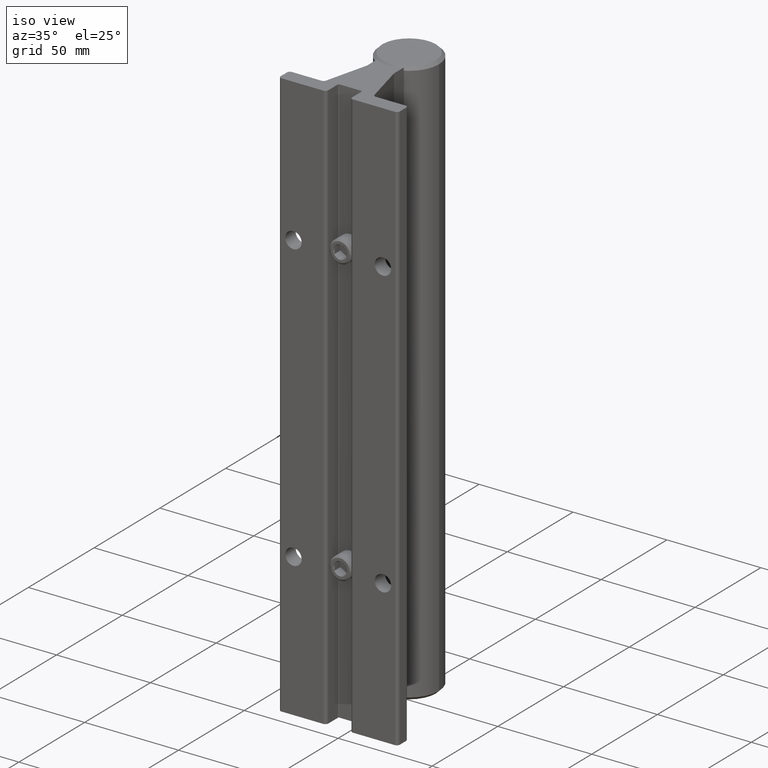
[diagram: clean part render]
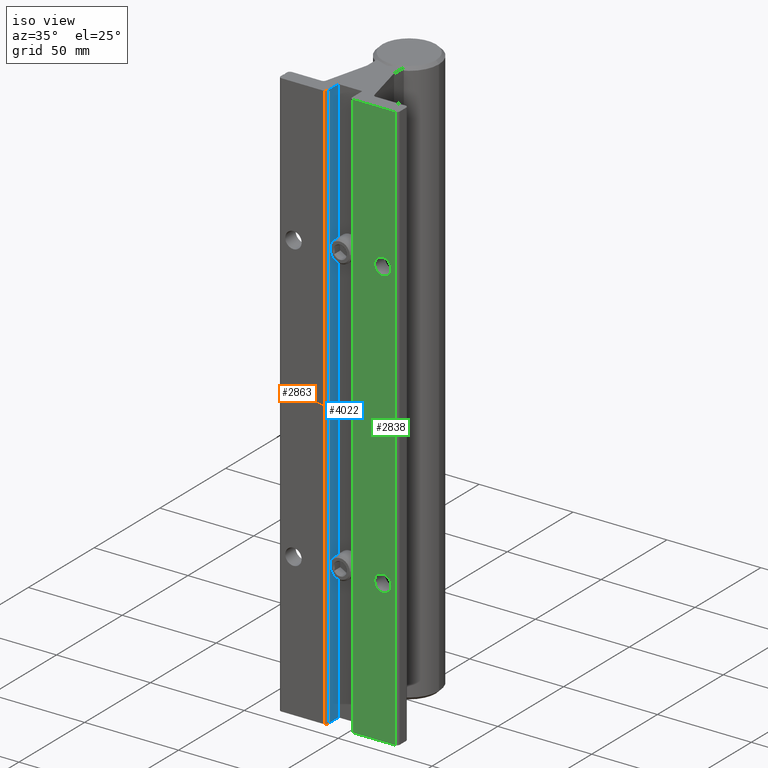
[diagram: same view with three faces highlighted in distinct colors, each labeled with its STEP entity id]
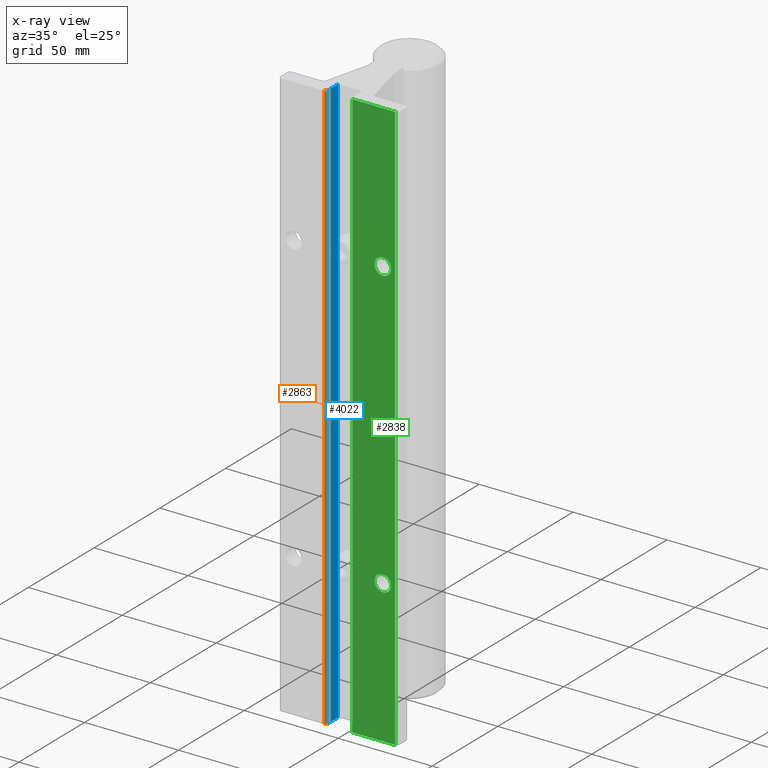
[diagram: x-ray of the same camera — body ghosted, the three highlighted faces saturated]
A machine part, iso view with three faces highlighted in distinct colors.
The next image is the same camera in x-ray (body ghosted, the three faces saturated) — at least one of them is partly hidden behind the body in this view.
Their STEP definitions:

[orange] entity #2863 — the highlighted cylindrical surface (edge-blend (fillet) strip) has radius 1.6002 mm, axis along (0, 0, 1).
#43 = DIRECTION ( 'NONE',  ( 1.000000000000000000, 0.000000000000000000, 0.000000000000000000 ) ) ;
#165 = CARTESIAN_POINT ( 'NONE',  ( -0.2914527309704832425, 0.003799364890488219574, 0.000000000000000000 ) ) ;
#169 = DIRECTION ( 'NONE',  ( 1.000000000000000000, 0.000000000000000000, 0.000000000000000000 ) ) ;
#187 = CARTESIAN_POINT ( 'NONE',  ( -0.3130000000000005000, 0.06300000000000012534, -14.94793013549425531 ) ) ;
#442 = CARTESIAN_POINT ( 'NONE',  ( -0.2500000000000007216, 0.06300000000000012534, -12.00000000000000178 ) ) ;
#617 = VERTEX_POINT ( 'NONE', #2729 ) ;
#635 = ORIENTED_EDGE ( 'NONE', *, *, #1891, .T. ) ;
#716 = ORIENTED_EDGE ( 'NONE', *, *, #2791, .F. ) ;
#746 = AXIS2_PLACEMENT_3D ( 'NONE', #4013, #2080, #3372 ) ;
#789 = VERTEX_POINT ( 'NONE', #442 ) ;
#839 = VERTEX_POINT ( 'NONE', #165 ) ;
#1081 = DIRECTION ( 'NONE',  ( 0.000000000000000000, 0.000000000000000000, 1.000000000000000000 ) ) ;
#1195 = AXIS2_PLACEMENT_3D ( 'NONE', #1228, #2849, #43 ) ;
#1228 = CARTESIAN_POINT ( 'NONE',  ( -0.3130000000000005000, 0.06300000000000012534, -12.00000000000000178 ) ) ;
#1257 = EDGE_LOOP ( 'NONE', ( #2638, #635, #4018, #716 ) ) ;
#1392 = FACE_OUTER_BOUND ( 'NONE', #1257, .T. ) ;
#1446 = CYLINDRICAL_SURFACE ( 'NONE', #1607, 0.06299999999999980616 ) ;
#1607 = AXIS2_PLACEMENT_3D ( 'NONE', #187, #1081, #169 ) ;
#1891 = EDGE_CURVE ( 'NONE', #789, #617, #4066, .T. ) ;
#1982 = LINE ( 'NONE', #3884, #2940 ) ;
#2080 = DIRECTION ( 'NONE',  ( 0.000000000000000000, 0.000000000000000000, 1.000000000000000000 ) ) ;
#2192 = VERTEX_POINT ( 'NONE', #2988 ) ;
#2506 = CARTESIAN_POINT ( 'NONE',  ( -0.2500000000000006661, 0.06300000000000012534, -14.94793013549425531 ) ) ;
#2638 = ORIENTED_EDGE ( 'NONE', *, *, #3229, .F. ) ;
#2729 = CARTESIAN_POINT ( 'NONE',  ( -0.2500000000000007216, 0.06300000000000012534, 0.000000000000000000 ) ) ;
#2791 = EDGE_CURVE ( 'NONE', #2192, #839, #1982, .T. ) ;
#2849 = DIRECTION ( 'NONE',  ( -0.000000000000000000, -0.000000000000000000, -1.000000000000000000 ) ) ;
#2863 = ADVANCED_FACE ( 'NONE', ( #1392 ), #1446, .T. ) ;
#2940 = VECTOR ( 'NONE', #3584, 39.37007874015748143 ) ;
#2988 = CARTESIAN_POINT ( 'NONE',  ( -0.2914527309704831870, 0.003799364890488220008, -12.00000000000000178 ) ) ;
#3229 = EDGE_CURVE ( 'NONE', #789, #2192, #3399, .T. ) ;
#3372 = DIRECTION ( 'NONE',  ( 1.000000000000000000, 0.000000000000000000, 0.000000000000000000 ) ) ;
#3399 = CIRCLE ( 'NONE', #1195, 0.06299999999999980616 ) ;
#3462 = DIRECTION ( 'NONE',  ( 0.000000000000000000, 0.000000000000000000, 1.000000000000000000 ) ) ;
#3466 = VECTOR ( 'NONE', #3462, 39.37007874015748143 ) ;
#3584 = DIRECTION ( 'NONE',  ( 0.000000000000000000, 0.000000000000000000, 1.000000000000000000 ) ) ;
#3672 = CIRCLE ( 'NONE', #746, 0.06299999999999980616 ) ;
#3884 = CARTESIAN_POINT ( 'NONE',  ( -0.2914527309704831870, 0.003799364890488176640, -14.94793013549425531 ) ) ;
#4013 = CARTESIAN_POINT ( 'NONE',  ( -0.3130000000000005000, 0.06300000000000012534, 0.000000000000000000 ) ) ;
#4018 = ORIENTED_EDGE ( 'NONE', *, *, #4024, .F. ) ;
#4024 = EDGE_CURVE ( 'NONE', #839, #617, #3672, .T. ) ;
#4066 = LINE ( 'NONE', #2506, #3466 ) ;

[blue] entity #4022 — the highlighted planar face has unit normal (1, 0, 0).
#247 = DIRECTION ( 'NONE',  ( 1.000000000000000000, 9.436435211275530528E-16, -0.000000000000000000 ) ) ;
#442 = CARTESIAN_POINT ( 'NONE',  ( -0.2500000000000007216, 0.06300000000000012534, -12.00000000000000178 ) ) ;
#490 = DIRECTION ( 'NONE',  ( -9.436435211275530528E-16, 1.000000000000000000, 0.000000000000000000 ) ) ;
#617 = VERTEX_POINT ( 'NONE', #2729 ) ;
#789 = VERTEX_POINT ( 'NONE', #442 ) ;
#843 = LINE ( 'NONE', #3413, #2475 ) ;
#857 = CARTESIAN_POINT ( 'NONE',  ( -0.2500000000000009437, 0.3524999999999998690, -0.000000000000000000 ) ) ;
#974 = EDGE_CURVE ( 'NONE', #2133, #789, #2142, .T. ) ;
#1143 = EDGE_CURVE ( 'NONE', #2133, #1380, #3692, .T. ) ;
#1273 = AXIS2_PLACEMENT_3D ( 'NONE', #3024, #247, #2432 ) ;
#1368 = ORIENTED_EDGE ( 'NONE', *, *, #1143, .T. ) ;
#1380 = VERTEX_POINT ( 'NONE', #857 ) ;
#1587 = ORIENTED_EDGE ( 'NONE', *, *, #974, .F. ) ;
#1668 = VECTOR ( 'NONE', #1699, 39.37007874015748143 ) ;
#1699 = DIRECTION ( 'NONE',  ( 0.000000000000000000, 0.000000000000000000, 1.000000000000000000 ) ) ;
#1740 = FACE_OUTER_BOUND ( 'NONE', #3153, .T. ) ;
#1891 = EDGE_CURVE ( 'NONE', #789, #617, #4066, .T. ) ;
#2133 = VERTEX_POINT ( 'NONE', #2285 ) ;
#2142 = LINE ( 'NONE', #3060, #2194 ) ;
#2194 = VECTOR ( 'NONE', #3432, 39.37007874015748143 ) ;
#2285 = CARTESIAN_POINT ( 'NONE',  ( -0.2500000000000009437, 0.3524999999999998690, -12.00000000000000178 ) ) ;
#2432 = DIRECTION ( 'NONE',  ( -9.436435211275530528E-16, 1.000000000000000000, 0.000000000000000000 ) ) ;
#2475 = VECTOR ( 'NONE', #490, 39.37007874015748143 ) ;
#2506 = CARTESIAN_POINT ( 'NONE',  ( -0.2500000000000006661, 0.06300000000000012534, -14.94793013549425531 ) ) ;
#2683 = ORIENTED_EDGE ( 'NONE', *, *, #1891, .F. ) ;
#2729 = CARTESIAN_POINT ( 'NONE',  ( -0.2500000000000007216, 0.06300000000000012534, 0.000000000000000000 ) ) ;
#2854 = ORIENTED_EDGE ( 'NONE', *, *, #4040, .F. ) ;
#3024 = CARTESIAN_POINT ( 'NONE',  ( -0.2500000000000006661, 0.06300000000000012534, -14.94793013549425531 ) ) ;
#3048 = CARTESIAN_POINT ( 'NONE',  ( -0.2500000000000008882, 0.3524999999999998690, -14.94793013549425531 ) ) ;
#3060 = CARTESIAN_POINT ( 'NONE',  ( -0.2500000000000006661, 0.06300000000000012534, -12.00000000000000178 ) ) ;
#3153 = EDGE_LOOP ( 'NONE', ( #1587, #1368, #2854, #2683 ) ) ;
#3413 = CARTESIAN_POINT ( 'NONE',  ( -0.2500000000000006661, 0.06300000000000012534, 0.000000000000000000 ) ) ;
#3432 = DIRECTION ( 'NONE',  ( 9.436435211275530528E-16, -1.000000000000000000, 0.000000000000000000 ) ) ;
#3462 = DIRECTION ( 'NONE',  ( 0.000000000000000000, 0.000000000000000000, 1.000000000000000000 ) ) ;
#3466 = VECTOR ( 'NONE', #3462, 39.37007874015748143 ) ;
#3692 = LINE ( 'NONE', #3048, #1668 ) ;
#3719 = PLANE ( 'NONE',  #1273 ) ;
#4022 = ADVANCED_FACE ( 'NONE', ( #1740 ), #3719, .T. ) ;
#4040 = EDGE_CURVE ( 'NONE', #617, #1380, #843, .T. ) ;
#4066 = LINE ( 'NONE', #2506, #3466 ) ;

[green] entity #2838 — the highlighted planar face has unit normal (0, 1, 0).
#60 = EDGE_CURVE ( 'NONE', #523, #957, #1991, .T. ) ;
#102 = LINE ( 'NONE', #1048, #726 ) ;
#103 = EDGE_CURVE ( 'NONE', #878, #2428, #1177, .T. ) ;
#137 = CARTESIAN_POINT ( 'NONE',  ( 0.9375000000000000000, 0.000000000000000000, -3.000000000000000444 ) ) ;
#150 = FACE_OUTER_BOUND ( 'NONE', #3808, .T. ) ;
#158 = DIRECTION ( 'NONE',  ( 0.000000000000000000, 0.000000000000000000, 1.000000000000000000 ) ) ;
#166 = EDGE_CURVE ( 'NONE', #3623, #2487, #2680, .T. ) ;
#184 = CARTESIAN_POINT ( 'NONE',  ( 0.9375000000000000000, 0.000000000000000000, -9.172000000000002373 ) ) ;
#199 = EDGE_CURVE ( 'NONE', #1893, #2999, #102, .T. ) ;
#294 = EDGE_CURVE ( 'NONE', #2428, #878, #1112, .T. ) ;
#380 = ORIENTED_EDGE ( 'NONE', *, *, #2061, .T. ) ;
#466 = CARTESIAN_POINT ( 'NONE',  ( 0.9375000000000000000, 0.000000000000000000, -8.828000000000001180 ) ) ;
#469 = DIRECTION ( 'NONE',  ( 0.000000000000000000, 1.000000000000000000, 0.000000000000000000 ) ) ;
#521 = CARTESIAN_POINT ( 'NONE',  ( 0.9375000000000000000, 0.000000000000000000, -9.000000000000001776 ) ) ;
#523 = VERTEX_POINT ( 'NONE', #2771 ) ;
#726 = VECTOR ( 'NONE', #1367, 39.37007874015748143 ) ;
#812 = DIRECTION ( 'NONE',  ( 0.000000000000000000, -0.000000000000000000, 1.000000000000000000 ) ) ;
#829 = FACE_BOUND ( 'NONE', #2699, .T. ) ;
#878 = VERTEX_POINT ( 'NONE', #184 ) ;
#957 = VERTEX_POINT ( 'NONE', #4033 ) ;
#1048 = CARTESIAN_POINT ( 'NONE',  ( 0.3018914002153681997, 0.000000000000000000, -14.94793013549425531 ) ) ;
#1058 = EDGE_CURVE ( 'NONE', #3623, #1893, #3193, .T. ) ;
#1096 = FACE_BOUND ( 'NONE', #3888, .T. ) ;
#1112 = CIRCLE ( 'NONE', #1590, 0.1720000000000002360 ) ;
#1157 = DIRECTION ( 'NONE',  ( 0.000000000000000000, 1.000000000000000000, 0.000000000000000000 ) ) ;
#1177 = CIRCLE ( 'NONE', #2524, 0.1720000000000002360 ) ;
#1182 = DIRECTION ( 'NONE',  ( 0.000000000000000000, 1.000000000000000000, 0.000000000000000000 ) ) ;
#1309 = CARTESIAN_POINT ( 'NONE',  ( 0.3018914002153681997, 0.000000000000000000, -12.00000000000000178 ) ) ;
#1336 = VECTOR ( 'NONE', #3225, 39.37007874015748143 ) ;
#1367 = DIRECTION ( 'NONE',  ( 0.000000000000000000, 0.000000000000000000, 1.000000000000000000 ) ) ;
#1411 = PLANE ( 'NONE',  #1866 ) ;
#1437 = ORIENTED_EDGE ( 'NONE', *, *, #1058, .F. ) ;
#1536 = ORIENTED_EDGE ( 'NONE', *, *, #103, .T. ) ;
#1574 = DIRECTION ( 'NONE',  ( -1.000000000000000000, -1.524099289199776426E-16, 0.000000000000000000 ) ) ;
#1590 = AXIS2_PLACEMENT_3D ( 'NONE', #521, #1182, #4027 ) ;
#1664 = VECTOR ( 'NONE', #1574, 39.37007874015748143 ) ;
#1747 = CARTESIAN_POINT ( 'NONE',  ( 1.198108599784633910, 0.000000000000000000, 0.000000000000000000 ) ) ;
#1866 = AXIS2_PLACEMENT_3D ( 'NONE', #3318, #1157, #812 ) ;
#1893 = VERTEX_POINT ( 'NONE', #3733 ) ;
#1916 = ORIENTED_EDGE ( 'NONE', *, *, #2807, .F. ) ;
#1991 = CIRCLE ( 'NONE', #3121, 0.1720000000000002360 ) ;
#2019 = DIRECTION ( 'NONE',  ( 0.000000000000000000, 0.000000000000000000, 1.000000000000000000 ) ) ;
#2061 = EDGE_CURVE ( 'NONE', #957, #523, #3813, .T. ) ;
#2063 = ORIENTED_EDGE ( 'NONE', *, *, #294, .T. ) ;
#2145 = CARTESIAN_POINT ( 'NONE',  ( 0.3018914002153655907, 4.268512490100411402E-16, 0.000000000000000000 ) ) ;
#2298 = CARTESIAN_POINT ( 'NONE',  ( -2.500000000000000000, 0.000000000000000000, 0.000000000000000000 ) ) ;
#2428 = VERTEX_POINT ( 'NONE', #466 ) ;
#2487 = VERTEX_POINT ( 'NONE', #1747 ) ;
#2524 = AXIS2_PLACEMENT_3D ( 'NONE', #2716, #469, #158 ) ;
#2680 = LINE ( 'NONE', #2995, #3715 ) ;
#2699 = EDGE_LOOP ( 'NONE', ( #380, #3742 ) ) ;
#2716 = CARTESIAN_POINT ( 'NONE',  ( 0.9375000000000000000, 0.000000000000000000, -9.000000000000001776 ) ) ;
#2771 = CARTESIAN_POINT ( 'NONE',  ( 0.9375000000000000000, 0.000000000000000000, -2.827999999999999847 ) ) ;
#2807 = EDGE_CURVE ( 'NONE', #2999, #2487, #2928, .T. ) ;
#2838 = ADVANCED_FACE ( 'NONE', ( #1096, #829, #150 ), #1411, .F. ) ;
#2928 = LINE ( 'NONE', #2298, #1336 ) ;
#2958 = DIRECTION ( 'NONE',  ( 0.000000000000000000, 0.000000000000000000, 1.000000000000000000 ) ) ;
#2995 = CARTESIAN_POINT ( 'NONE',  ( 1.198108599784633688, 1.365923996832131609E-16, -14.94793013549425531 ) ) ;
#2999 = VERTEX_POINT ( 'NONE', #2145 ) ;
#3085 = CARTESIAN_POINT ( 'NONE',  ( 1.198108599784633688, 1.365923996832131609E-16, -12.00000000000000178 ) ) ;
#3121 = AXIS2_PLACEMENT_3D ( 'NONE', #137, #3292, #2019 ) ;
#3193 = LINE ( 'NONE', #1309, #1664 ) ;
#3225 = DIRECTION ( 'NONE',  ( 1.000000000000000000, 0.000000000000000000, 0.000000000000000000 ) ) ;
#3292 = DIRECTION ( 'NONE',  ( 0.000000000000000000, 1.000000000000000000, 0.000000000000000000 ) ) ;
#3305 = ORIENTED_EDGE ( 'NONE', *, *, #166, .T. ) ;
#3318 = CARTESIAN_POINT ( 'NONE',  ( -2.500000000000000000, 0.000000000000000000, 0.1250000000000000000 ) ) ;
#3570 = DIRECTION ( 'NONE',  ( 0.000000000000000000, 1.000000000000000000, 0.000000000000000000 ) ) ;
#3620 = DIRECTION ( 'NONE',  ( 0.000000000000000000, 0.000000000000000000, 1.000000000000000000 ) ) ;
#3623 = VERTEX_POINT ( 'NONE', #3085 ) ;
#3715 = VECTOR ( 'NONE', #3620, 39.37007874015748143 ) ;
#3733 = CARTESIAN_POINT ( 'NONE',  ( 0.3018914002153681997, 4.268512490100411279E-18, -12.00000000000000178 ) ) ;
#3742 = ORIENTED_EDGE ( 'NONE', *, *, #60, .T. ) ;
#3808 = EDGE_LOOP ( 'NONE', ( #1916, #3842, #1437, #3305 ) ) ;
#3813 = CIRCLE ( 'NONE', #4002, 0.1720000000000002360 ) ;
#3842 = ORIENTED_EDGE ( 'NONE', *, *, #199, .F. ) ;
#3888 = EDGE_LOOP ( 'NONE', ( #1536, #2063 ) ) ;
#3919 = CARTESIAN_POINT ( 'NONE',  ( 0.9375000000000000000, 0.000000000000000000, -3.000000000000000444 ) ) ;
#4002 = AXIS2_PLACEMENT_3D ( 'NONE', #3919, #3570, #2958 ) ;
#4027 = DIRECTION ( 'NONE',  ( 0.000000000000000000, 0.000000000000000000, 1.000000000000000000 ) ) ;
#4033 = CARTESIAN_POINT ( 'NONE',  ( 0.9375000000000000000, 0.000000000000000000, -3.172000000000000597 ) ) ;